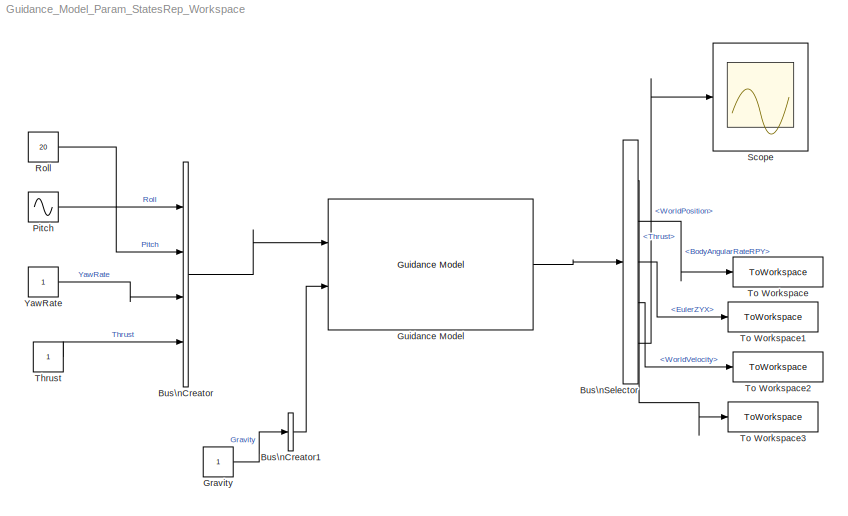
MODEL Guidance_Model_Param_StatesRep_Workspace
KIND model
BLOCK [BusCreator] Bus\nCreator
  DisplayOption = bar
  InheritFromInputs = on
  Inputs = Roll,Pitch,YawRate,Thrust
  NonVirtualBus = on
  OutDataTypeStr = Bus: MultirotorGuidanceControlBus
  Ports = [4, 1]
  SID = 3
BLOCK [BusCreator] Bus\nCreator1
  DisplayOption = bar
  InheritFromInputs = on
  Inputs = Gravity
  NonVirtualBus = on
  OutDataTypeStr = Bus: MultirotorGuidanceEnvironmentBus
  Ports = [1, 1]
  SID = 8
BLOCK [BusSelector] Bus\nSelector
  OutputSignals = Thrust,BodyAngularRateRPY,EulerZYX,WorldVelocity,WorldPosition
  Ports = [1, 5]
  SID = 4
BLOCK [Constant] Gravity
  SID = 7
BLOCK [Reference] Guidance Model  REF=uavalgslib/Guidance Model
  ControlBusName = 'MultirotorGuidanceControlBus'
  DataType = double
  EnvironmentBusName = 'MultirotorGuidanceEnvironmentBus'
  FlightPathAngleLimitsFixedWing = [-pi/2, pi/2]
  InitialAirSpeedFixedWing = 0
  InitialBodyAngularRateRPYMultirotor = [0; 0; 0]
  InitialEastFixedWing = 0
  InitialEulerZYXMultirotor = [0; 0; 0]
  InitialFlightPathAngleFixedWing = 0
  InitialHeadingAngleFixedWing = 0
  InitialHeightFixedWing = 0
  InitialNorthFixedWing = 0
  InitialRollAngleFixedWing = 0
  InitialRollAngleRateFixedWing = 0
  InitialThrustMultirotor = 0
  InitialWorldPositionMultirotor = [0; 0; 0]
  InitialWorldVelocityMultirotor = [0; 0; 0]
  MassMultirotor = 0.1
  ModelType = MultirotorGuidance
  PAirSpeedFixedWing = 1
  PDPitchMultirotor = [3402.97, 116.67]
  PDRollFixedWing = [3402.97, 116.67]
  PDRollMultirotor = [3402.97,116.67]
  PFlightPathAngleFixedWing = 39
  PHeadingAngleFixedWing = 3.9
  PHeightFixedWing = 3.9
  PThrustMultirotor = 3900
  PYawRateMultirotor = 1950
  Ports = [2, 1]
  RTWMemSecDataConstants = Inherit from model
  RTWMemSecDataInternal = Inherit from model
  RTWMemSecDataParameters = Inherit from model
  RTWMemSecFuncExecute = Inherit from model
  RTWMemSecFuncInitTerm = Inherit from model
  SID = 1
  SimulateUsing = Interpreted execution
  SourceBlock = uavalgslib/Guidance Model
  SourceType = Guidance Model
  SpecifiedDataType = double
  StateBusName = 'MultirotorGuidanceStateBus'
BLOCK [Sin] Pitch
  Ports = [0, 1]
  SID = 10
  SampleTime = 0
BLOCK [Constant] Roll
  SID = 9
  Value = 20
BLOCK [Scope] Scope
  Floating = off
  NumInputPorts = 1
  Ports = [1]
  SID = 17
  ScopeSpecificationString = Simulink.scopes.TimeScopeBlockCfg('CurrentConfiguration', extmgr.ConfigurationSet(extmgr.Configuration('Core','General UI',true),extmgr.Configuration('Core','Source UI',true),extmgr.Configuration('Sources','WiredSimulink',true),extmgr.Configuration('Visuals','Time Domain',true,'SerializedDisplays',{struct('MinYLimReal','-120.30123','MaxYLimReal','23.44407','YLabelReal','','MinYLimMag',' 0.00000','...<+1463ch>
BLOCK [Constant] Thrust
  SID = 6
BLOCK [ToWorkspace] To Workspace
  Decimation = 4
  FixptAsFi = on
  MaxDataPoints = inf
  Ports = [1]
  SID = 12
  SampleTime = -1
  SaveFormat = Timeseries
  VariableName = simout
BLOCK [ToWorkspace] To Workspace1
  FixptAsFi = on
  MaxDataPoints = inf
  Ports = [1]
  SID = 13
  SampleTime = -1
  SaveFormat = Timeseries
  VariableName = simout1
BLOCK [ToWorkspace] To Workspace2
  FixptAsFi = on
  MaxDataPoints = inf
  Ports = [1]
  SID = 14
  SampleTime = -1
  SaveFormat = Timeseries
  VariableName = simout2
BLOCK [ToWorkspace] To Workspace3
  FixptAsFi = on
  MaxDataPoints = inf
  Ports = [1]
  SID = 15
  SampleTime = -1
  SaveFormat = Timeseries
  VariableName = simout3
BLOCK [Constant] YawRate
  SID = 5
LINE Bus\nCreator1:1 -> Guidance Model:2
LINE Bus\nCreator:1 -> Guidance Model:1
LINE Bus\nSelector:1 -> To Workspace3:1
LINE Bus\nSelector:2 -> To Workspace:1
LINE Bus\nSelector:3 -> To Workspace1:1
LINE Bus\nSelector:4 -> To Workspace2:1
LINE Bus\nSelector:5 -> Scope:1
LINE Gravity:1 -> Bus\nCreator1:1
LINE Guidance Model:1 -> Bus\nSelector:1
LINE Pitch:1 -> Bus\nCreator:2
LINE Roll:1 -> Bus\nCreator:1
LINE Thrust:1 -> Bus\nCreator:4
LINE YawRate:1 -> Bus\nCreator:3
